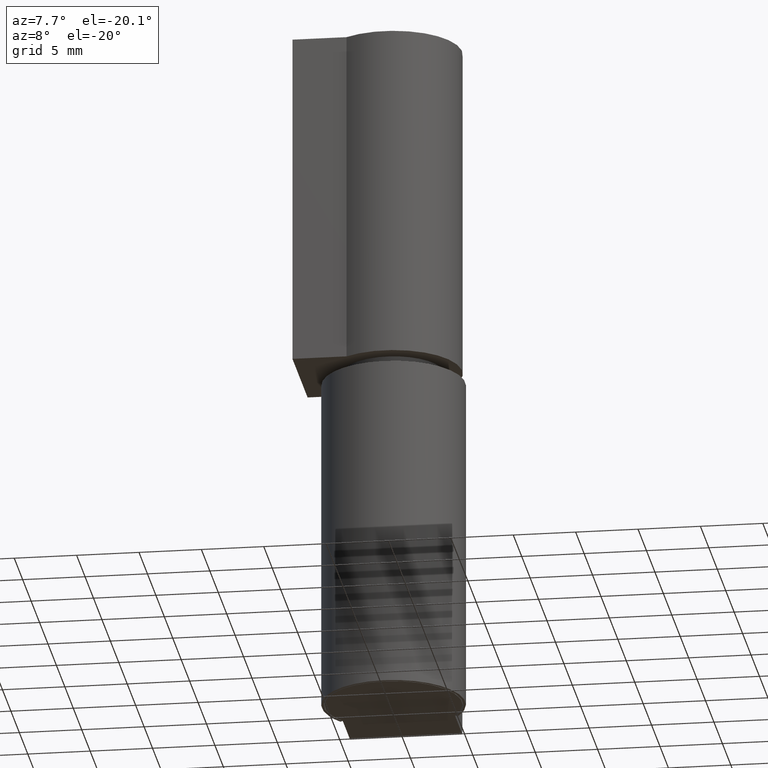
[diagram: clean part render]
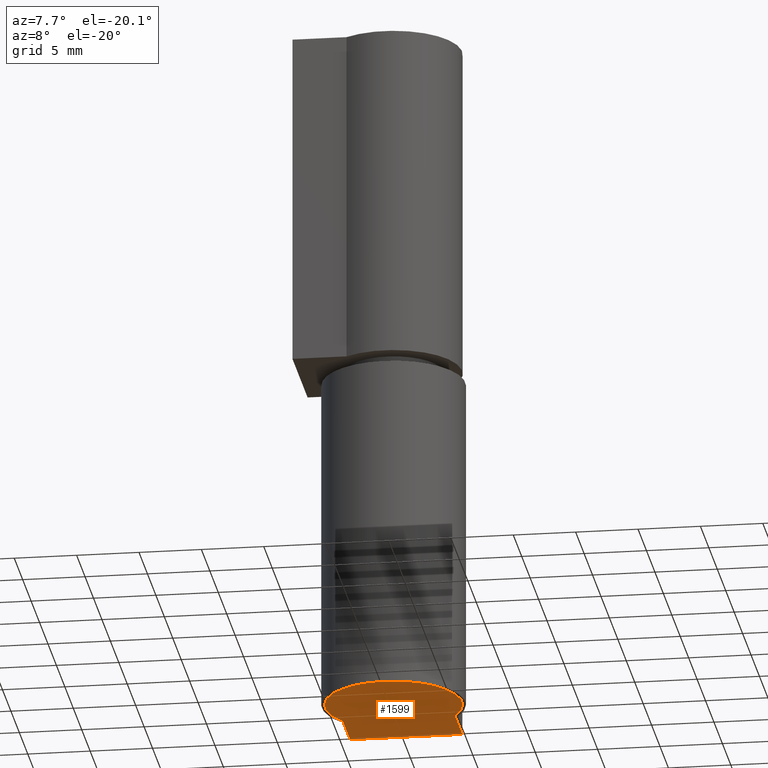
[diagram: same view with one face highlighted and labeled with its STEP entity id]
A machine part, auxiliary view. The second image highlights one B-rep face of the part: STEP entity #1599.
In plain terms, the highlighted face is a freeform B-spline surface patch.
Its self-contained STEP definition (entity closure, byte-faithful):
#1552=CARTESIAN_POINT('',(-6.049442170722605,-6.149350510951168,4.263256E-014));
#1553=CARTESIAN_POINT('',(6.049442924176023,-6.149350510951168,4.263256E-014));
#1554=CARTESIAN_POINT('',(-6.049442170722605,8.149350722175301,4.263256E-014));
#1555=CARTESIAN_POINT('',(6.049442924176023,8.149350722175301,4.263256E-014));
#1556=B_SPLINE_SURFACE_WITH_KNOTS('',1,1,((#1552,#1554),(#1553,#1555)),.UNSPECIFIED.,.F.,.F.,.U.,(2,2),(2,2),(0.0,12.098885094898630),(0.0,14.298701233126470),.UNSPECIFIED.);
#1557=CARTESIAN_POINT('',(-4.499999909455735,3.162328157364740,0.0));
#1558=VERTEX_POINT('',#1557);
#1559=CARTESIAN_POINT('',(-4.499999838738505,7.500000356230890,0.0));
#1560=VERTEX_POINT('',#1559);
#1561=CARTESIAN_POINT('',(-4.499999909455735,3.162328157364740,0.0));
#1562=CARTESIAN_POINT('',(-4.499999838738505,7.500000356230890,0.0));
#1563=QUASI_UNIFORM_CURVE('',1,(#1561,#1562),.UNSPECIFIED.,.F.,.U.);
#1564=EDGE_CURVE('',#1558,#1560,#1563,.T.);
#1565=ORIENTED_EDGE('',*,*,#1564,.T.);
#1566=CARTESIAN_POINT('',(4.500000088738590,7.500000356230890,0.0));
#1567=VERTEX_POINT('',#1566);
#1568=CARTESIAN_POINT('',(-4.499999838738505,7.500000356230890,0.0));
#1569=CARTESIAN_POINT('',(4.500000088738590,7.500000356230890,0.0));
#1570=QUASI_UNIFORM_CURVE('',1,(#1568,#1569),.UNSPECIFIED.,.F.,.U.);
#1571=EDGE_CURVE('',#1560,#1567,#1570,.T.);
#1572=ORIENTED_EDGE('',*,*,#1571,.T.);
#1573=CARTESIAN_POINT('',(4.500000331288090,3.162327907544380,0.0));
#1574=VERTEX_POINT('',#1573);
#1575=CARTESIAN_POINT('',(4.500000088738590,7.500000356230890,0.0));
#1576=CARTESIAN_POINT('',(4.500000331288090,3.162327907544380,0.0));
#1577=QUASI_UNIFORM_CURVE('',1,(#1575,#1576),.UNSPECIFIED.,.F.,.U.);
#1578=EDGE_CURVE('',#1567,#1574,#1577,.T.);
#1579=ORIENTED_EDGE('',*,*,#1578,.T.);
#1580=CARTESIAN_POINT('',(4.500000331288090,3.162327907544380,0.0));
#1581=CARTESIAN_POINT('',(7.317418869377793,-0.846888616480075,0.0));
#1582=CARTESIAN_POINT('',(3.658709395670331,-4.106567947685147,0.0));
#1583=CARTESIAN_POINT('',(-0.000000078037132,-7.366247278890221,0.0));
#1584=CARTESIAN_POINT('',(-3.658709372050851,-4.106567745994401,0.0));
#1585=CARTESIAN_POINT('',(-7.317418666064574,-0.846888213098577,0.0));
#1586=CARTESIAN_POINT('',(-4.499999909455736,3.162328157364739,0.0));
#1594=(BOUNDED_CURVE()B_SPLINE_CURVE(2,(#1580,#1581,#1582,#1583,#1584,#1585,#1586),.UNSPECIFIED.,.F.,.U.)B_SPLINE_CURVE_WITH_KNOTS((3,2,2,3),(0.0,0.333333333333333,0.666666666666667,1.0),.UNSPECIFIED.)CURVE()GEOMETRIC_REPRESENTATION_ITEM()RATIONAL_B_SPLINE_CURVE((1.0,0.746649506316509,1.0,0.746649506316509,1.0,0.746649506316509,1.0))REPRESENTATION_ITEM(''));
#1595=EDGE_CURVE('',#1574,#1558,#1594,.T.);
#1596=ORIENTED_EDGE('',*,*,#1595,.T.);
#1597=EDGE_LOOP('',(#1565,#1572,#1579,#1596));
#1598=FACE_OUTER_BOUND('',#1597,.T.);
#1599=ADVANCED_FACE('',(#1598),#1556,.F.);